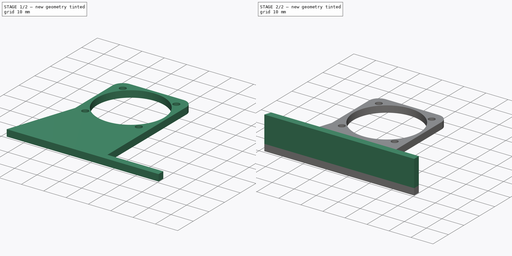
[diagram: build sequence overview — one tinted view per stage of 2, left to right]
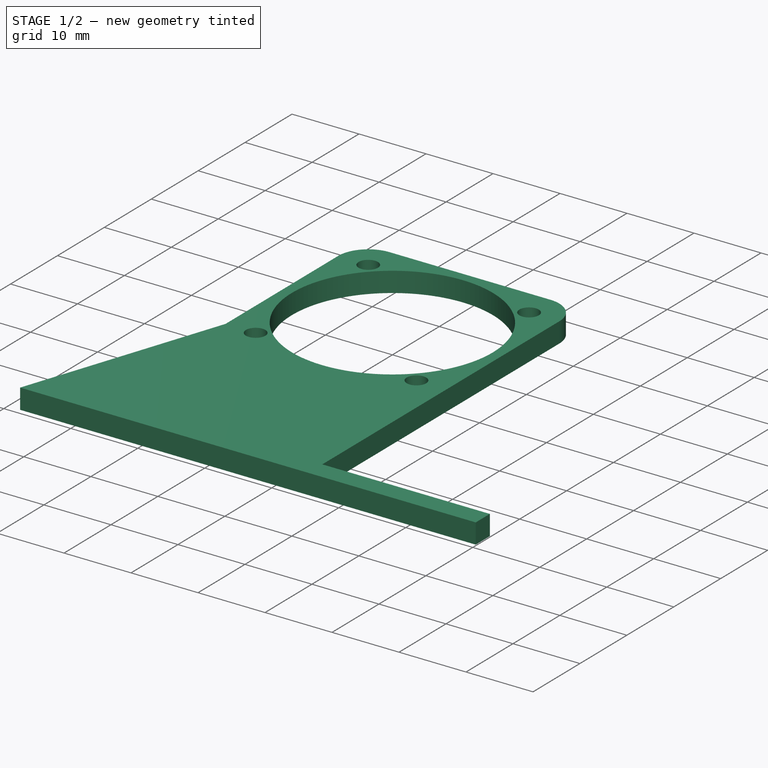
[diagram: stage 1 of 2 — iso view after this stage's code; geometry added in this stage tinted green]
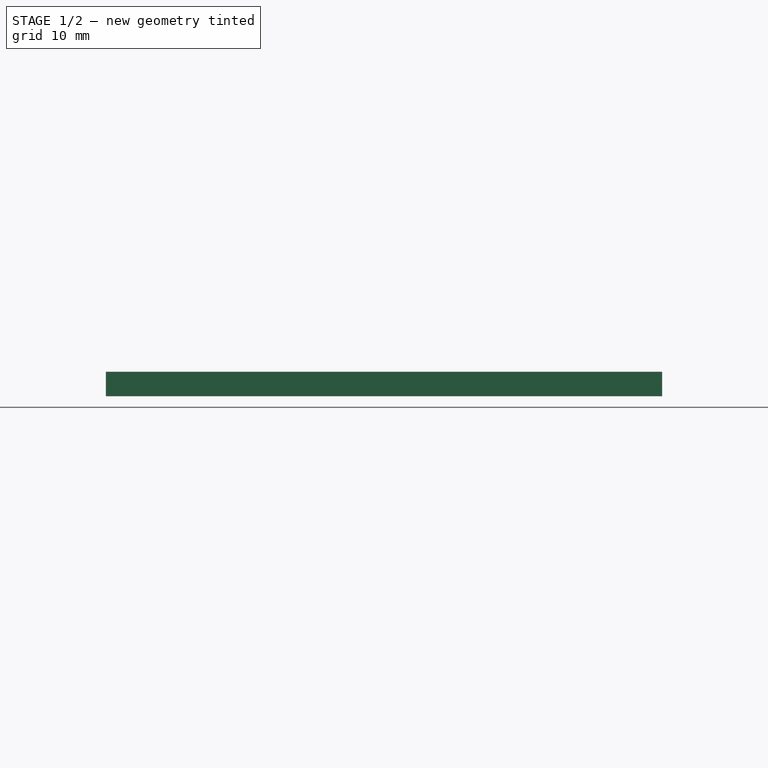
[diagram: stage 1 of 2 — front view after this stage's code; geometry added in this stage tinted green]
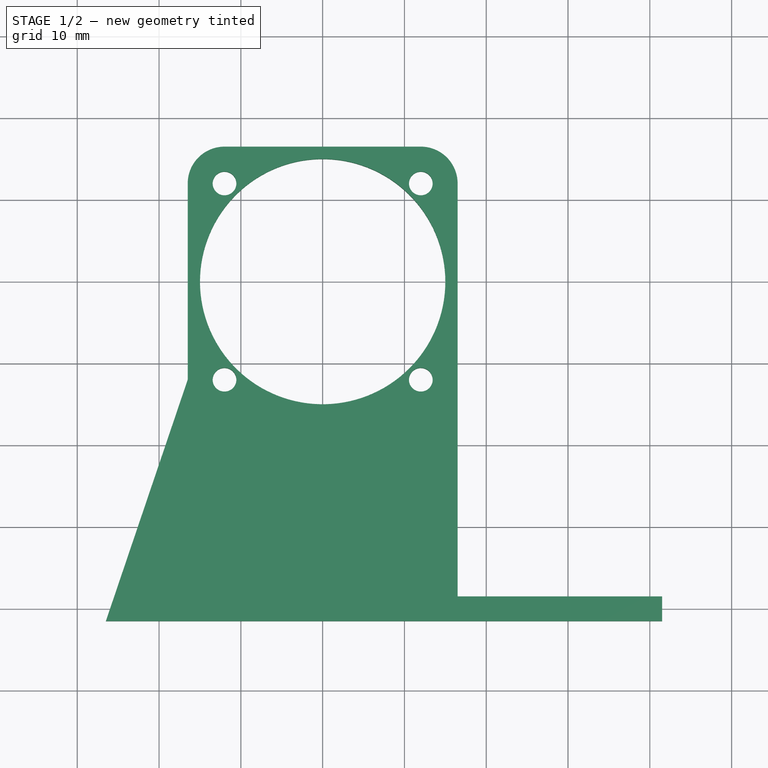
[diagram: stage 1 of 2 — top view after this stage's code; geometry added in this stage tinted green]
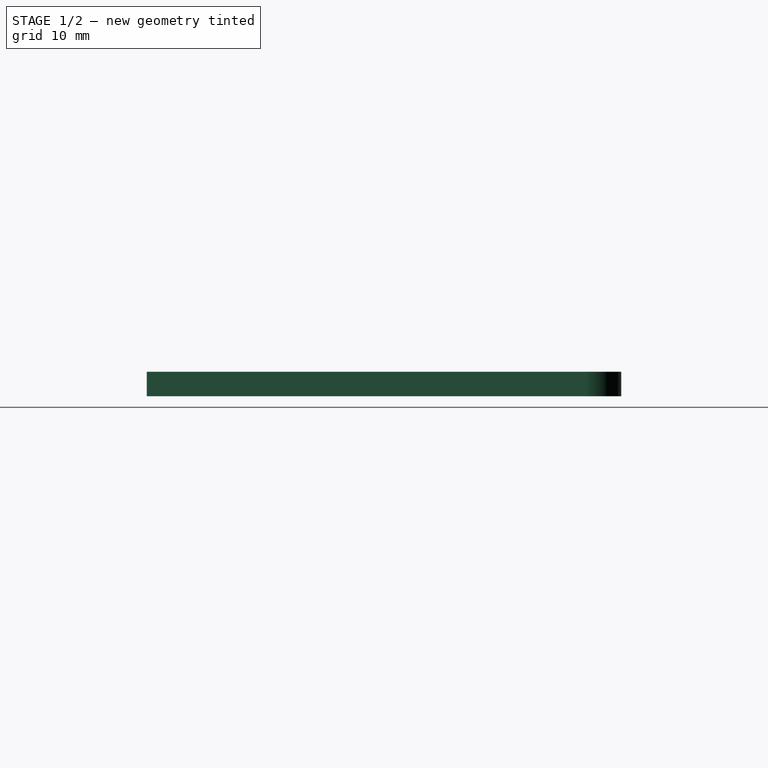
[diagram: stage 1 of 2 — right view after this stage's code; geometry added in this stage tinted green]
FCSTD DOCUMENT  (FreeCAD 0.19R24276 (Git))
Label: Fan30Stand1
License: All rights reserved
LicenseURL: http://en.wikipedia.org/wiki/All_rights_reserved
objects: Sketcher::SketchObject×2, PartDesign::Pad×2, PartDesign::Plane×1, PartDesign::Body×1
note: 8 computed .brp shape members not serialized (recipe doc carries the construction recipe); baked Part::Feature solids carry a one-line shape summary decoded from their .brp

FEATURE [Sketcher::SketchObject] Sketch
  FullyConstrained = true
  MapMode = 5
  Support = -> [XY_Plane]
  sketch-geometry (26):
    g0: Circle CenterX=-12 CenterY=12 CenterZ=0 NormalX=0 NormalY=0 NormalZ=1 AngleXU=0 Radius=1.45
    g1: Circle CenterX=12 CenterY=12 CenterZ=0 NormalX=0 NormalY=0 NormalZ=1 AngleXU=0 Radius=1.45
    g2: Circle CenterX=-12 CenterY=-12 CenterZ=0 NormalX=0 NormalY=0 NormalZ=1 AngleXU=0 Radius=1.45
    g3: Circle CenterX=12 CenterY=-12 CenterZ=0 NormalX=0 NormalY=0 NormalZ=1 AngleXU=0 Radius=1.45
    g4: LineSegment StartX=-12 StartY=12 StartZ=0 EndX=12 EndY=12 EndZ=0
    g5: LineSegment StartX=12 StartY=12 StartZ=0 EndX=12 EndY=-12 EndZ=0
    g6: LineSegment StartX=12 StartY=-12 StartZ=0 EndX=-12 EndY=-12 EndZ=0
    g7: LineSegment StartX=-12 StartY=-12 StartZ=0 EndX=-12 EndY=12 EndZ=0
    g8: Circle CenterX=0 CenterY=0 CenterZ=0 NormalX=0 NormalY=0 NormalZ=1 AngleXU=0 Radius=15
    g9: LineSegment StartX=-12 StartY=16.5 StartZ=0 EndX=12 EndY=16.5 EndZ=0
    g10: LineSegment StartX=16.5 StartY=12 StartZ=0 EndX=16.5 EndY=-12 EndZ=0
    g11: LineSegment StartX=12 StartY=-16.5 StartZ=0 EndX=-12 EndY=-16.5 EndZ=0
    g12: LineSegment StartX=-16.5 StartY=-12 StartZ=0 EndX=-16.5 EndY=12 EndZ=0
    g13: ArcOfCircle CenterX=-12 CenterY=12 CenterZ=0 NormalX=0 NormalY=0 NormalZ=1 AngleXU=0 Radius=4.5 StartAngle=1.5708 EndAngle=3.14159
    g14: GeomPoint X=-16.5 Y=16.5 Z=0
    g15: ArcOfCircle CenterX=12 CenterY=12 CenterZ=0 NormalX=0 NormalY=0 NormalZ=1 AngleXU=0 Radius=4.5 StartAngle=0 EndAngle=1.5708
    g16: GeomPoint X=16.5 Y=16.5 Z=0
    g17: ArcOfCircle CenterX=12 CenterY=-12 CenterZ=0 NormalX=0 NormalY=0 NormalZ=1 AngleXU=0 Radius=4.5 StartAngle=4.71239 EndAngle=6.28319
    g18: GeomPoint X=16.5 Y=-16.5 Z=0
    g19: ArcOfCircle CenterX=-12 CenterY=-12 CenterZ=0 NormalX=0 NormalY=0 NormalZ=1 AngleXU=0 Radius=4.5 StartAngle=3.14159 EndAngle=4.71239
    g20: GeomPoint X=-16.5 Y=-16.5 Z=0
    g21: LineSegment StartX=-16.5 StartY=-12 StartZ=0 EndX=-26.5 EndY=-41.5 EndZ=0
    g22: LineSegment StartX=-26.5 StartY=-41.5 StartZ=0 EndX=41.5 EndY=-41.5 EndZ=0
    g23: LineSegment StartX=41.5 StartY=-41.5 StartZ=0 EndX=41.5 EndY=-38.5 EndZ=0
    g24: LineSegment StartX=41.5 StartY=-38.5 StartZ=0 EndX=16.5 EndY=-38.5 EndZ=0
    g25: LineSegment StartX=16.5 StartY=-38.5 StartZ=0 EndX=16.5 EndY=-12 EndZ=0
  constraints (59):
    c: Coincident(g4,g5)
    c: Coincident(g5,g6)
    c: Coincident(g6,g7)
    c: Coincident(g7,g4)
    c: Horizontal(g4)
    c: Vertical(g7)
    c: Coincident(g4,g0)
    c: Coincident(g4,g1)
    c: Coincident(g5,g3)
    c: Coincident(g6,g2)
    c: Symmetric(g2,g3,g-2)
    c: Symmetric(g1,g3,g-1)
    c: Diameter(g0) = 2.9
    c: Equal(g0,g1)
    c: Equal(g0,g3)
    c: Equal(g0,g2)
    c: Equal(g4,g7)
    c: Distance(g5) = 24
    c: Coincident(g8,g-1)
    c: Diameter(g8) = 30
    c: Horizontal(g11)
    c: Vertical(g12)
    c: Symmetric(g18,g16,g-1)
    c: Symmetric(g14,g16,g-2)
    c: PointOnObject(g14,g9)
    c: PointOnObject(g14,g12)
    c: Tangent(g9,g13) = 1.5708
    c: Tangent(g12,g13) = 1.5708
    c: PointOnObject(g16,g9)
    c: PointOnObject(g16,g10)
    c: Tangent(g9,g15) = 1.5708
    c: Tangent(g10,g15) = 1.5708
    c: PointOnObject(g18,g10)
    c: PointOnObject(g18,g11)
    c: Tangent(g10,g17) = 1.5708
    c: Tangent(g11,g17) = 1.5708
    c: PointOnObject(g20,g11)
    c: PointOnObject(g20,g12)
    c: Tangent(g11,g19) = 1.5708
    c: Tangent(g12,g19) = 1.5708
    c: Equal(g12,g11)
    c: Coincident(g19,g2)
    c: Equal(g19,g13)
    c: Equal(g13,g15)
    c: Distance(g20,g18) = 33
    c: Coincident(g21,g12)
    c: Coincident(g22,g21)
    c: Horizontal(g22)
    c: Coincident(g23,g22)
    c: Vertical(g23)
    c: Coincident(g24,g23)
    c: Horizontal(g24)
    c: Coincident(g25,g24)
    c: Coincident(g25,g10)
    c: Vertical(g25)
    c: DistanceX(g24,g24) = 25
    c: DistanceX(g21,g12) = 10
    c: Distance(g23) = 3
    c: DistanceY(g21,g11) = 25
FEATURE [PartDesign::Pad] Pad
  Direction = (1,1,1)
  Length = 3
  Length2 = 100
  Profile = -> Sketch
  Type = 0
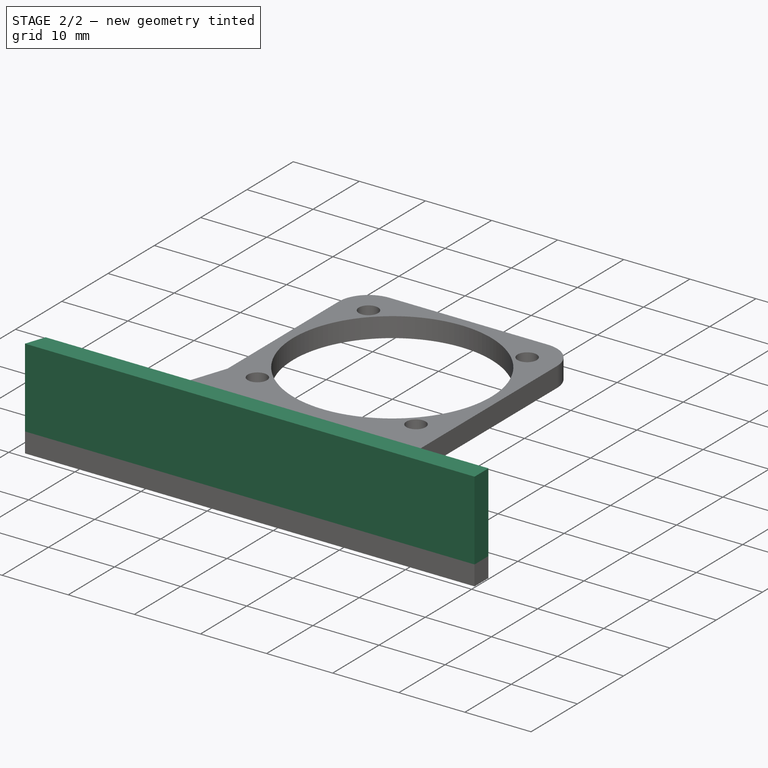
[diagram: stage 2 of 2 — iso view after this stage's code; geometry added in this stage tinted green]
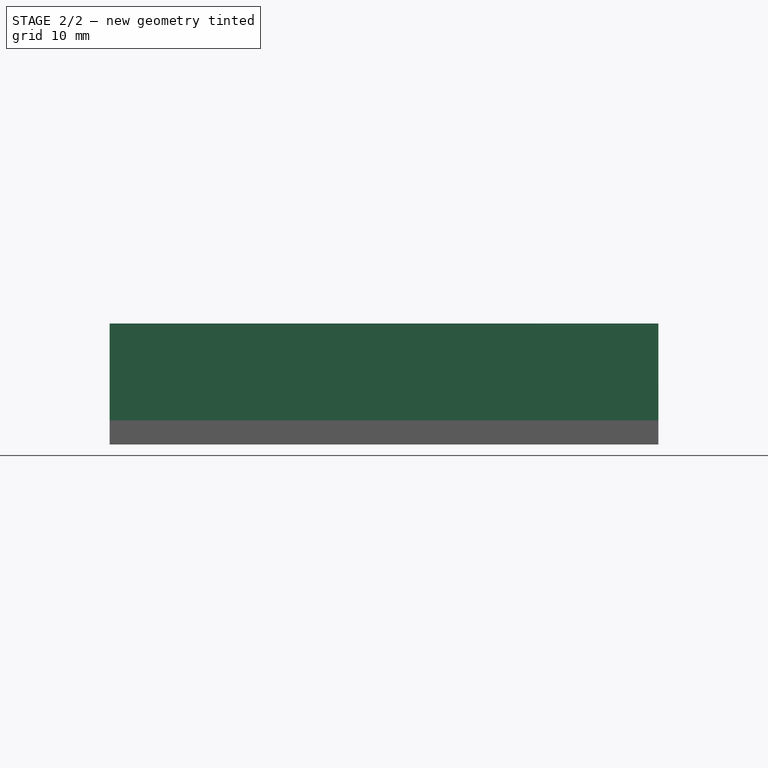
[diagram: stage 2 of 2 — front view after this stage's code; geometry added in this stage tinted green]
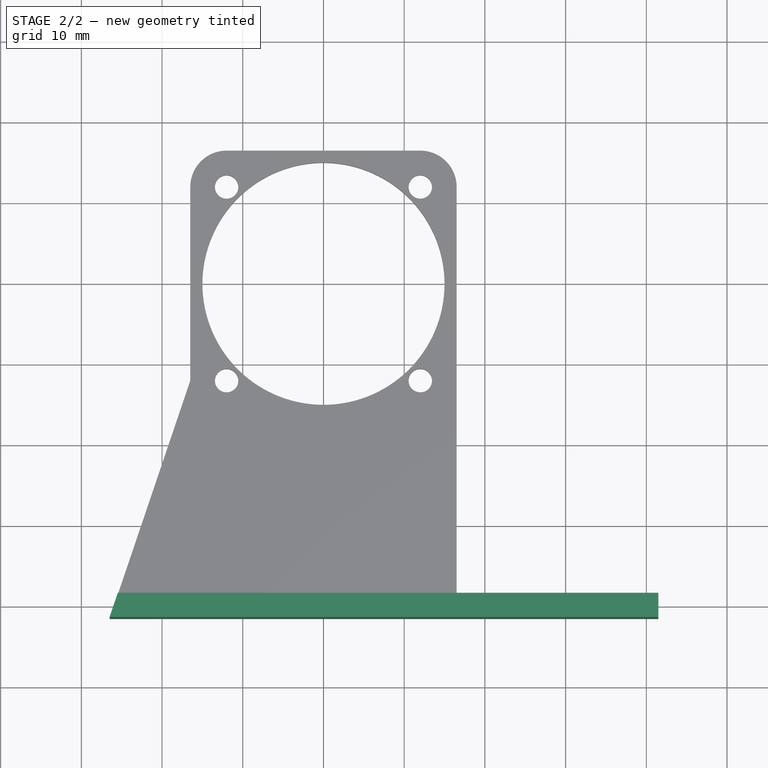
[diagram: stage 2 of 2 — top view after this stage's code; geometry added in this stage tinted green]
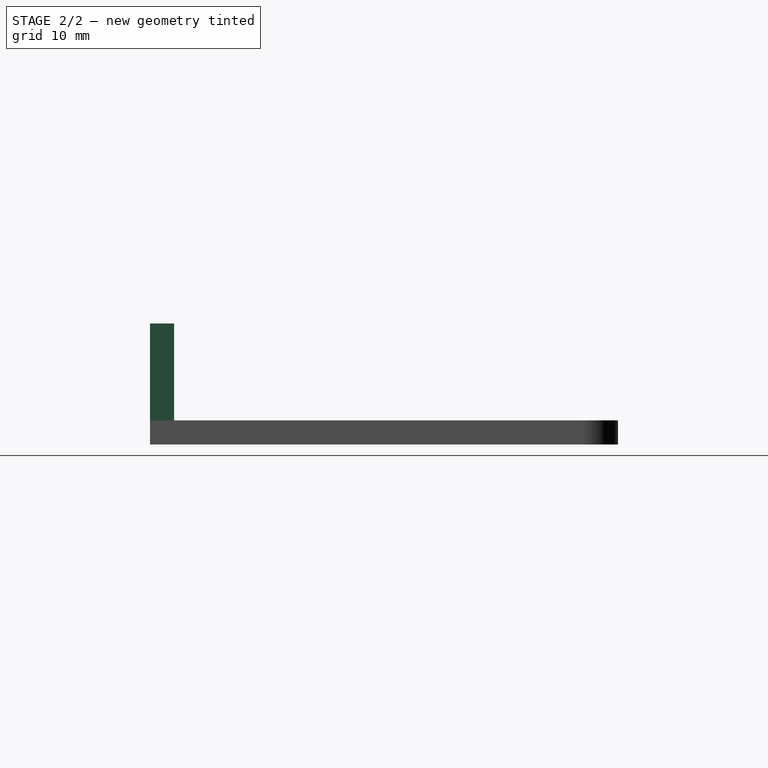
[diagram: stage 2 of 2 — right view after this stage's code; geometry added in this stage tinted green]
FEATURE [PartDesign::Plane] DatumPlane
  Length = 81.4492
  MapMode = 5
  Placement = pos=(0,0,3) rot=(0,0,1;0rad)
  ResizeMode = 0
  Support = -> [Pad]
  Width = 79.9492
FEATURE [Sketcher::SketchObject] Sketch001
  ExternalGeometry = -> [Pad]
  FullyConstrained = true
  MapMode = 5
  Placement = pos=(0,0,3) rot=(0,0,1;0rad)
  Support = -> [DatumPlane]
  sketch-geometry (4):
    g0: LineSegment StartX=41.5 StartY=-38.5 StartZ=0 EndX=-25.4831 EndY=-38.5 EndZ=0
    g1: LineSegment StartX=-25.4831 StartY=-38.5 StartZ=0 EndX=-26.5 EndY=-41.5 EndZ=0
    g2: LineSegment StartX=-26.5 StartY=-41.5 StartZ=0 EndX=41.5 EndY=-41.5 EndZ=0
    g3: LineSegment StartX=41.5 StartY=-41.5 StartZ=0 EndX=41.5 EndY=-38.5 EndZ=0
  constraints (9):
    c: Coincident(g0,g-4)
    c: PointOnObject(g0,g-3)
    c: Horizontal(g0)
    c: Coincident(g1,g0)
    c: Coincident(g1,g-3)
    c: Coincident(g2,g1)
    c: Coincident(g2,g-4)
    c: Coincident(g3,g2)
    c: Coincident(g3,g0)
FEATURE [PartDesign::Pad] Pad001
  BaseFeature = -> Pad
  Direction = (1,1,1)
  Length = 12
  Length2 = 100
  Profile = -> Sketch001
  Type = 0
FEATURE [PartDesign::Body] Body
  Group = -> [Sketch,Pad,DatumPlane,Sketch001,Pad001]
  Origin = -> Origin
  Tip = -> Pad001
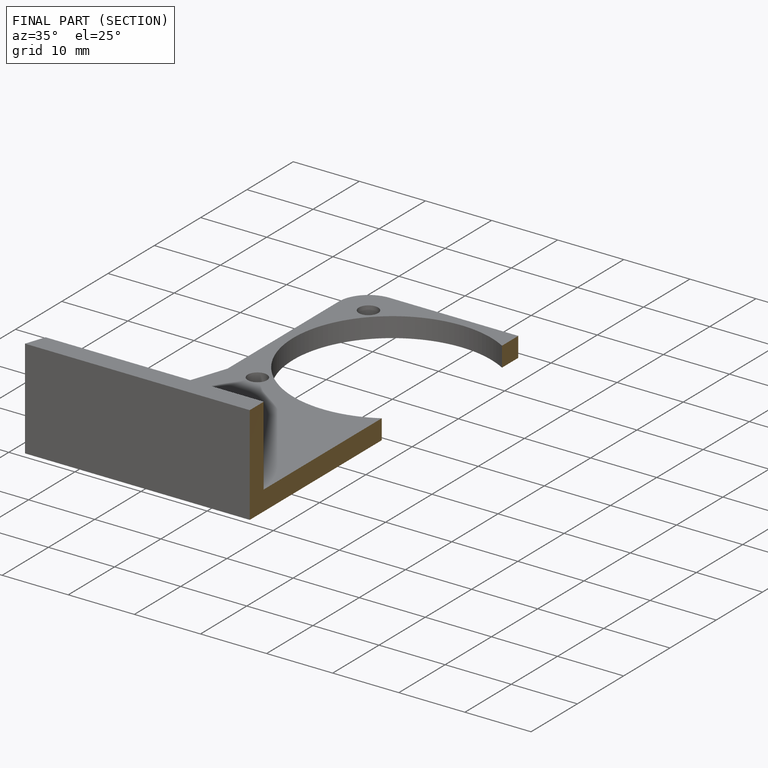
[diagram: finished part — half-section view (interior)]
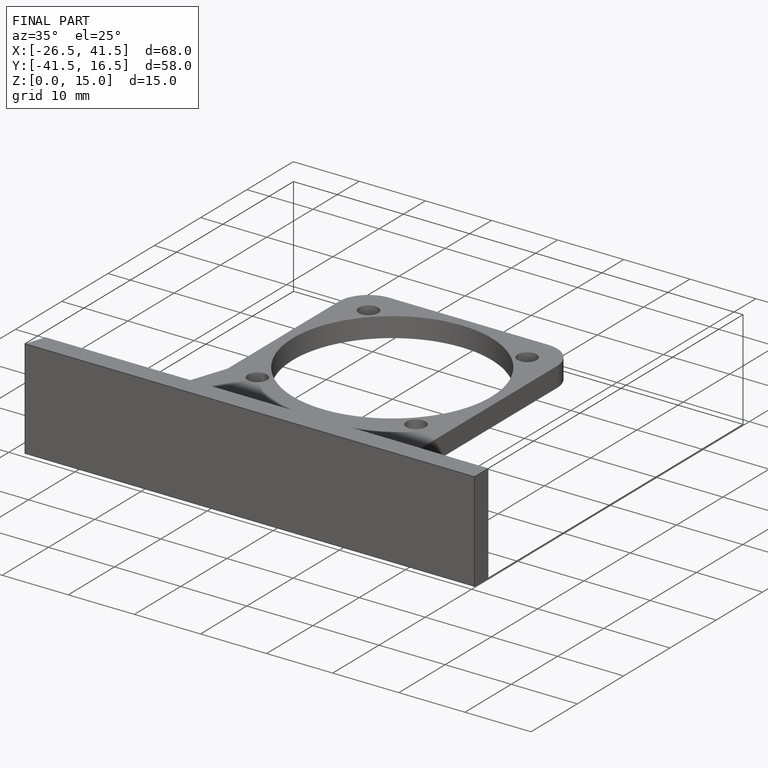
[diagram: finished part — iso view with bounding-box wireframe]
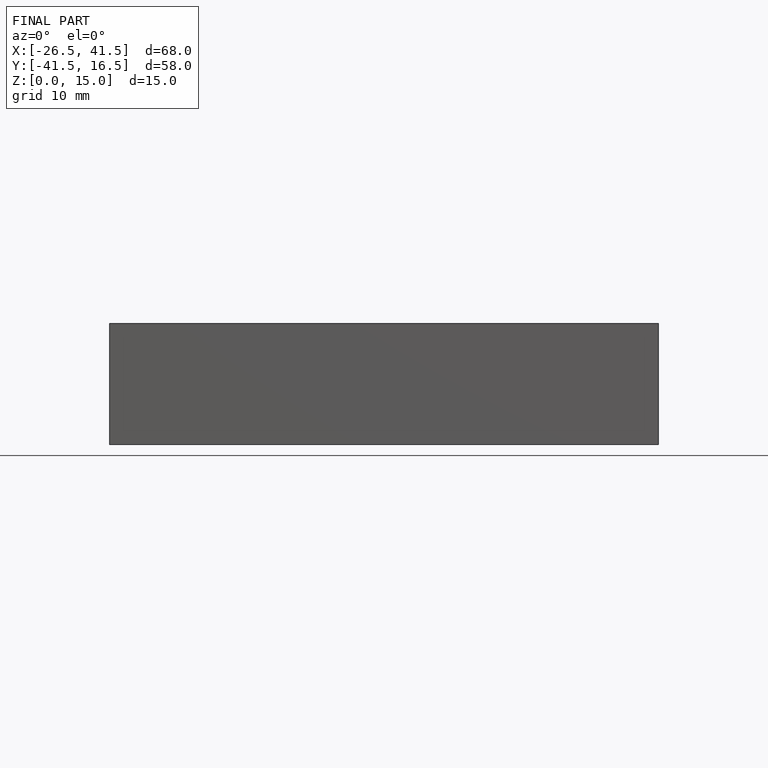
[diagram: finished part — front view with bounding-box wireframe]
